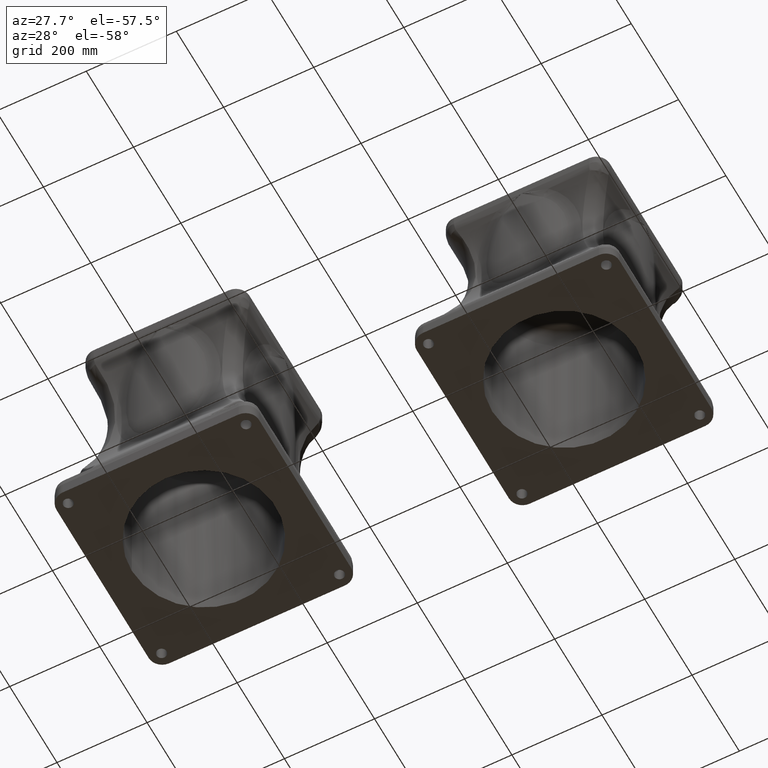
[diagram: clean part render]
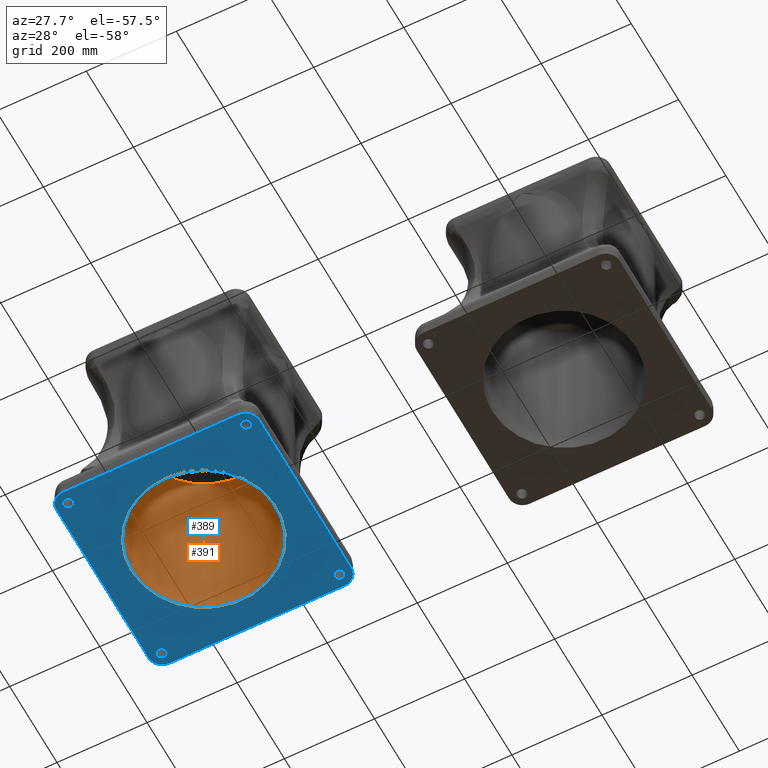
[diagram: same view with the hole feature highlighted: cylindrical wall and planar end face, labeled with their STEP entity ids]
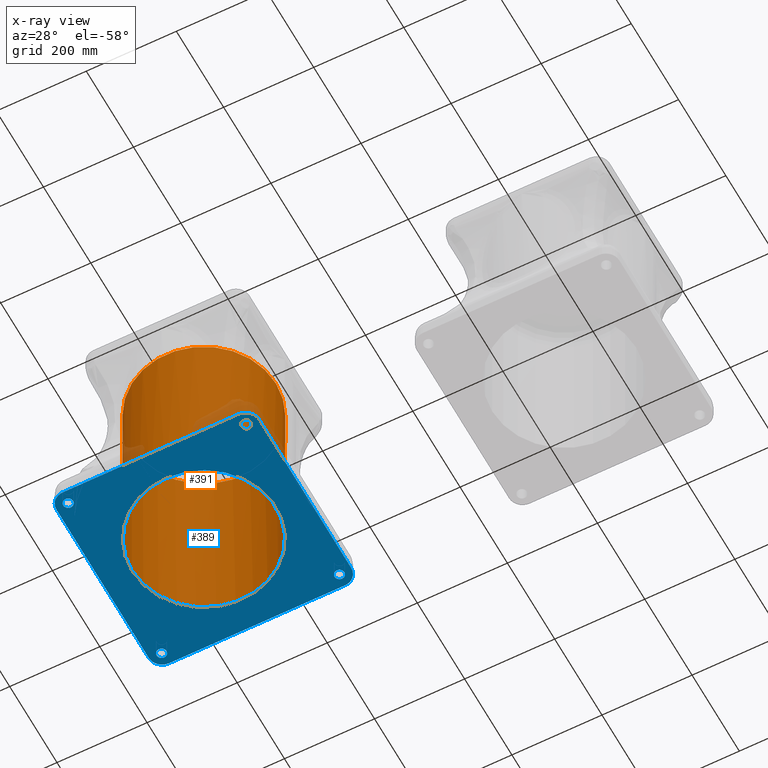
[diagram: x-ray of the same camera — body ghosted, the hole faces saturated]
A machine part, auxiliary view. The highlighted faces form one hole feature of diameter 320 mm: the cylindrical wall (entity #391, orange) and its adjacent planar end face (entity #389, blue) — they share a circular edge in the B-rep.
The next image is the same camera in x-ray (body ghosted, the hole faces saturated) — the bore reads through the body.
Wall:
#391=ADVANCED_FACE('',(#842,#843),#844,.F.);
#842=FACE_OUTER_BOUND('',#16806,.T.);
#843=FACE_OUTER_BOUND('',#16807,.T.);
#844=CYLINDRICAL_SURFACE('',#16808,160.0);
#16806=EDGE_LOOP('',(#21126));
#16807=EDGE_LOOP('',(#21127));
#16808=AXIS2_PLACEMENT_3D('',#21128,#21129,#21130);
#21126=ORIENTED_EDGE('',*,*,#22155,.F.);
#21127=ORIENTED_EDGE('',*,*,#22152,.F.);
#21128=CARTESIAN_POINT('',(-162.142857142857,155.0,6.7846962603646E-014));
#21129=DIRECTION('',(0.0,0.0,-1.0));
#21130=DIRECTION('',(-1.0,0.0,0.0));
#22152=EDGE_CURVE('',#22960,#22960,#22961,.T.);
#22155=EDGE_CURVE('',#22965,#22965,#22966,.T.);
#22960=VERTEX_POINT('',#32711);
#22961=CIRCLE('',#32712,160.0);
#22965=VERTEX_POINT('',#32726);
#22966=CIRCLE('',#32727,160.0);
#32711=CARTESIAN_POINT('',(-162.142857142857,-5.00000000000023,-513.33333324));
#32712=AXIS2_PLACEMENT_3D('',#34562,#34563,#34564);
#32726=CARTESIAN_POINT('',(-322.142857142857,155.0,-61.1111110999999));
#32727=AXIS2_PLACEMENT_3D('',#34568,#34569,#34570);
#34562=CARTESIAN_POINT('',(-162.142857142857,155.0,-513.33333324));
#34563=DIRECTION('',(0.0,-3.46944695195361E-016,1.0));
#34564=DIRECTION('',(0.0,-1.0,-3.46944695195361E-016));
#34568=CARTESIAN_POINT('',(-162.142857142857,155.0,-61.1111110999999));
#34569=DIRECTION('',(0.0,0.0,-1.0));
#34570=DIRECTION('',(-1.0,0.0,0.0));
End face:
#389=ADVANCED_FACE('',(#832,#833,#834,#835,#836,#837),#838,.F.);
#832=FACE_BOUND('',#16796,.T.);
#833=FACE_BOUND('',#16797,.T.);
#834=FACE_BOUND('',#16798,.T.);
#835=FACE_BOUND('',#16799,.T.);
#836=FACE_BOUND('',#16800,.T.);
#837=FACE_OUTER_BOUND('',#16801,.T.);
#838=PLANE('',#16802);
#16796=EDGE_LOOP('',(#21098));
#16797=EDGE_LOOP('',(#21099));
#16798=EDGE_LOOP('',(#21100));
#16799=EDGE_LOOP('',(#21101));
#16800=EDGE_LOOP('',(#21102));
#16801=EDGE_LOOP('',(#21103,#21104,#21105,#21106,#21107,#21108,#21109,#21110));
#16802=AXIS2_PLACEMENT_3D('',#21111,#21112,#21113);
#21098=ORIENTED_EDGE('',*,*,#22148,.F.);
#21099=ORIENTED_EDGE('',*,*,#22149,.F.);
#21100=ORIENTED_EDGE('',*,*,#22150,.F.);
#21101=ORIENTED_EDGE('',*,*,#22151,.F.);
#21102=ORIENTED_EDGE('',*,*,#22152,.T.);
#21103=ORIENTED_EDGE('',*,*,#22135,.F.);
#21104=ORIENTED_EDGE('',*,*,#22153,.T.);
#21105=ORIENTED_EDGE('',*,*,#22138,.F.);
#21106=ORIENTED_EDGE('',*,*,#22109,.T.);
#21107=ORIENTED_EDGE('',*,*,#22130,.F.);
#21108=ORIENTED_EDGE('',*,*,#22114,.T.);
#21109=ORIENTED_EDGE('',*,*,#22143,.F.);
#21110=ORIENTED_EDGE('',*,*,#22126,.T.);
#21111=CARTESIAN_POINT('',(-387.142857142857,-70.0,-513.33333324));
#21112=DIRECTION('',(0.0,0.0,1.0));
#21113=DIRECTION('',(1.0,0.0,0.0));
#22109=EDGE_CURVE('',#22896,#22897,#22898,.F.);
#22114=EDGE_CURVE('',#22906,#22904,#22907,.F.);
#22126=EDGE_CURVE('',#22925,#22926,#22927,.F.);
#22130=EDGE_CURVE('',#22906,#22897,#22932,.T.);
#22135=EDGE_CURVE('',#22936,#22926,#22938,.T.);
#22138=EDGE_CURVE('',#22896,#22941,#22942,.T.);
#22143=EDGE_CURVE('',#22925,#22904,#22947,.T.);
#22148=EDGE_CURVE('',#22952,#22952,#22953,.T.);
#22149=EDGE_CURVE('',#22954,#22954,#22955,.T.);
#22150=EDGE_CURVE('',#22956,#22956,#22957,.T.);
#22151=EDGE_CURVE('',#22958,#22958,#22959,.T.);
#22152=EDGE_CURVE('',#22960,#22960,#22961,.T.);
#22153=EDGE_CURVE('',#22936,#22941,#22962,.F.);
#22896=VERTEX_POINT('',#32343);
#22897=VERTEX_POINT('',#32344);
#22898=(B_SPLINE_CURVE(3,(#32346,#32347,#32348,#32349),.UNSPECIFIED.,.F.,.F.)B_SPLINE_CURVE_WITH_KNOTS((4,4),(0.0,1.0),.UNSPECIFIED.)RATIONAL_B_SPLINE_CURVE((1.0,0.804737854124365,0.804737854124365,1.0))BOUNDED_CURVE()REPRESENTATION_ITEM('')GEOMETRIC_REPRESENTATION_ITEM()CURVE());
#22904=VERTEX_POINT('',#32380);
#22906=VERTEX_POINT('',#32383);
#22907=(B_SPLINE_CURVE(3,(#32385,#32386,#32387,#32388),.UNSPECIFIED.,.F.,.F.)B_SPLINE_CURVE_WITH_KNOTS((4,4),(0.0,1.0),.UNSPECIFIED.)RATIONAL_B_SPLINE_CURVE((1.0,0.804737854124365,0.804737854124365,1.0))BOUNDED_CURVE()REPRESENTATION_ITEM('')GEOMETRIC_REPRESENTATION_ITEM()CURVE());
#22925=VERTEX_POINT('',#32637);
#22926=VERTEX_POINT('',#32638);
#22927=(B_SPLINE_CURVE(3,(#32640,#32641,#32642,#32643),.UNSPECIFIED.,.F.,.F.)B_SPLINE_CURVE_WITH_KNOTS((4,4),(0.0,1.0),.UNSPECIFIED.)RATIONAL_B_SPLINE_CURVE((1.0,0.804737854124365,0.804737854124365,1.0))BOUNDED_CURVE()REPRESENTATION_ITEM('')GEOMETRIC_REPRESENTATION_ITEM()CURVE());
#22932=LINE('',#32665,#32666);
#22936=VERTEX_POINT('',#32673);
#22938=LINE('',#32676,#32677);
#22941=VERTEX_POINT('',#32682);
#22942=LINE('',#32683,#32684);
#22947=LINE('',#32693,#32694);
#22952=VERTEX_POINT('',#32703);
#22953=CIRCLE('',#32704,11.0);
#22954=VERTEX_POINT('',#32705);
#22955=CIRCLE('',#32706,11.0);
#22956=VERTEX_POINT('',#32707);
#22957=CIRCLE('',#32708,11.0);
#22958=VERTEX_POINT('',#32709);
#22959=CIRCLE('',#32710,11.0);
#22960=VERTEX_POINT('',#32711);
#22961=CIRCLE('',#32712,160.0);
#22962=(B_SPLINE_CURVE(3,(#32714,#32715,#32716,#32717),.UNSPECIFIED.,.F.,.F.)B_SPLINE_CURVE_WITH_KNOTS((4,4),(0.0,1.0),.UNSPECIFIED.)RATIONAL_B_SPLINE_CURVE((1.0,0.804737854124365,0.804737854124365,1.0))BOUNDED_CURVE()REPRESENTATION_ITEM('')GEOMETRIC_REPRESENTATION_ITEM()CURVE());
#32343=CARTESIAN_POINT('',(-357.142857142857,-70.0,-513.33333324));
#32344=CARTESIAN_POINT('',(-387.142857142857,-40.0,-513.33333324));
#32346=CARTESIAN_POINT('',(-387.142857142857,-40.0,-513.33333324));
#32347=CARTESIAN_POINT('',(-387.142857142857,-57.5735931288075,-513.33333324));
#32348=CARTESIAN_POINT('',(-374.716450271664,-70.0000000000003,-513.33333324));
#32349=CARTESIAN_POINT('',(-357.142857142857,-70.0,-513.33333324));
#32380=CARTESIAN_POINT('',(-357.142857142857,380.0,-513.33333324));
#32383=CARTESIAN_POINT('',(-387.142857142857,350.0,-513.33333324));
#32385=CARTESIAN_POINT('',(-357.142857142857,380.0,-513.33333324));
#32386=CARTESIAN_POINT('',(-374.716450271664,380.0,-513.33333324));
#32387=CARTESIAN_POINT('',(-387.142857142857,367.573593128807,-513.33333324));
#32388=CARTESIAN_POINT('',(-387.142857142857,350.0,-513.33333324));
#32637=CARTESIAN_POINT('',(32.8571428571429,380.0,-513.33333324));
#32638=CARTESIAN_POINT('',(62.8571428571429,350.0,-513.33333324));
#32640=CARTESIAN_POINT('',(62.8571428571429,350.0,-513.33333324));
#32641=CARTESIAN_POINT('',(62.8571428571429,367.573593128807,-513.33333324));
#32642=CARTESIAN_POINT('',(50.4307359859501,380.0,-513.33333324));
#32643=CARTESIAN_POINT('',(32.8571428571429,380.0,-513.33333324));
#32665=CARTESIAN_POINT('',(-387.142857142857,380.0,-513.33333324));
#32666=VECTOR('',#34532,1.0);
#32673=CARTESIAN_POINT('',(62.8571428571429,-40.0,-513.33333324));
#32676=CARTESIAN_POINT('',(62.8571428571429,-70.0,-513.33333324));
#32677=VECTOR('',#34537,1.0);
#32682=CARTESIAN_POINT('',(32.8571428571429,-70.0,-513.33333324));
#32683=CARTESIAN_POINT('',(-387.142857142857,-70.0,-513.33333324));
#32684=VECTOR('',#34540,1.0);
#32693=CARTESIAN_POINT('',(62.8571428571429,380.0,-513.33333324));
#32694=VECTOR('',#34545,1.0);
#32703=CARTESIAN_POINT('',(-359.642857142857,341.5,-513.33333324));
#32704=AXIS2_PLACEMENT_3D('',#34550,#34551,#34552);
#32705=CARTESIAN_POINT('',(-359.642857142857,-53.5,-513.33333324));
#32706=AXIS2_PLACEMENT_3D('',#34553,#34554,#34555);
#32707=CARTESIAN_POINT('',(35.3571428571429,341.5,-513.33333324));
#32708=AXIS2_PLACEMENT_3D('',#34556,#34557,#34558);
#32709=CARTESIAN_POINT('',(35.3571428571429,-53.5,-513.33333324));
#32710=AXIS2_PLACEMENT_3D('',#34559,#34560,#34561);
#32711=CARTESIAN_POINT('',(-162.142857142857,-5.00000000000023,-513.33333324));
#32712=AXIS2_PLACEMENT_3D('',#34562,#34563,#34564);
#32714=CARTESIAN_POINT('',(32.8571428571429,-70.0,-513.33333324));
#32715=CARTESIAN_POINT('',(50.4307359859501,-70.0000000000004,-513.33333324));
#32716=CARTESIAN_POINT('',(62.857142857143,-57.5735931288076,-513.33333324));
#32717=CARTESIAN_POINT('',(62.8571428571429,-40.0,-513.33333324));
#34532=DIRECTION('',(0.0,-1.0,0.0));
#34537=DIRECTION('',(0.0,1.0,0.0));
#34540=DIRECTION('',(1.0,0.0,0.0));
#34545=DIRECTION('',(-1.0,0.0,0.0));
#34550=CARTESIAN_POINT('',(-359.642857142857,352.5,-513.33333324));
#34551=DIRECTION('',(0.0,6.12323399573677E-017,-1.0));
#34552=DIRECTION('',(0.0,-1.0,-6.12323399573677E-017));
#34553=CARTESIAN_POINT('',(-359.642857142857,-42.5,-513.33333324));
#34554=DIRECTION('',(0.0,6.12323399573677E-017,-1.0));
#34555=DIRECTION('',(0.0,-1.0,-6.12323399573677E-017));
#34556=CARTESIAN_POINT('',(35.3571428571429,352.5,-513.33333324));
#34557=DIRECTION('',(0.0,6.12323399573677E-017,-1.0));
#34558=DIRECTION('',(0.0,-1.0,-6.12323399573677E-017));
#34559=CARTESIAN_POINT('',(35.3571428571429,-42.5,-513.33333324));
#34560=DIRECTION('',(0.0,6.12323399573677E-017,-1.0));
#34561=DIRECTION('',(0.0,-1.0,-6.12323399573677E-017));
#34562=CARTESIAN_POINT('',(-162.142857142857,155.0,-513.33333324));
#34563=DIRECTION('',(0.0,-3.46944695195361E-016,1.0));
#34564=DIRECTION('',(0.0,-1.0,-3.46944695195361E-016));